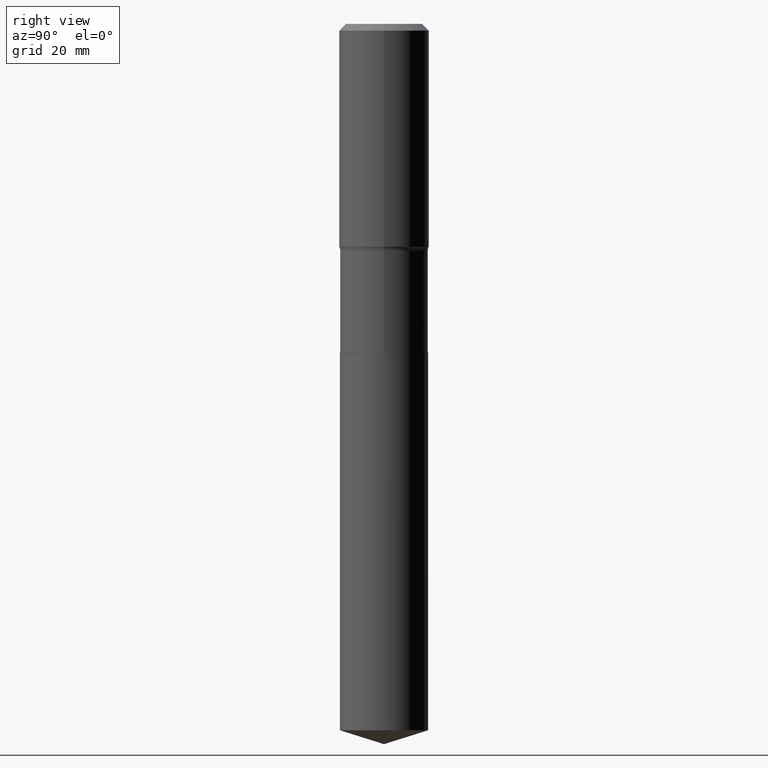
[diagram: clean part render]
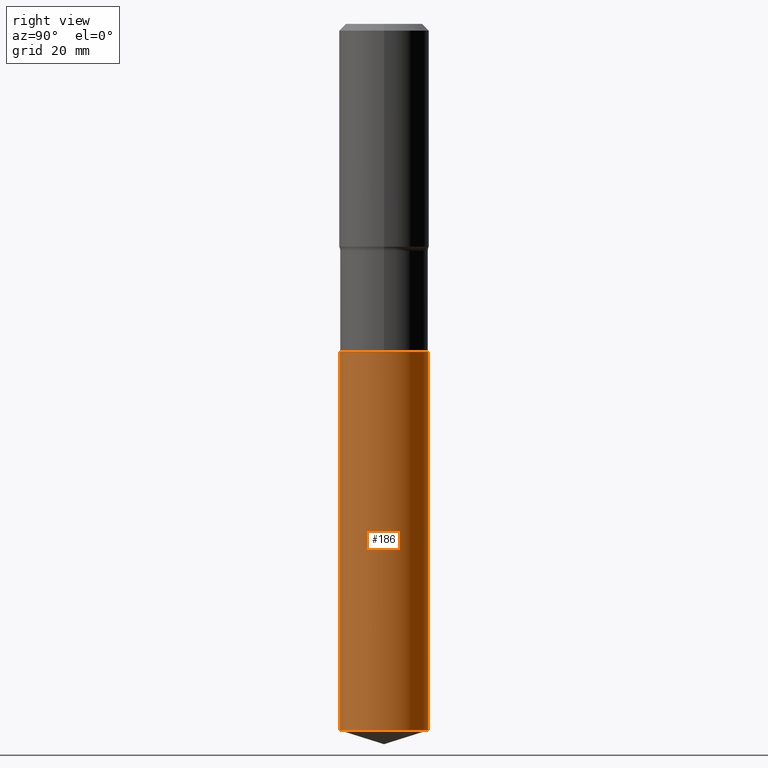
[diagram: same view with one face highlighted and labeled with its STEP entity id]
A machine part, right view. The second image highlights one B-rep face of the part: STEP entity #186.
In plain terms, the highlighted cylindrical surface (partial cylindrical patch) has radius 9.3269 mm, axis along (-0, 0, 1).
Its self-contained STEP definition (entity closure, byte-faithful):
#29 = DIRECTION ( 'NONE',  ( -6.982962677686265922E-15, -1.000000000000000000, 2.975869274144077348E-15 ) ) ;
#34 = DIRECTION ( 'NONE',  ( -2.445466253269083818E-29, 3.491484994764236272E-15, 1.000000000000000000 ) ) ;
#37 = AXIS2_PLACEMENT_3D ( 'NONE', #329, #34, #216 ) ;
#46 = ORIENTED_EDGE ( 'NONE', *, *, #328, .F. ) ;
#62 = VERTEX_POINT ( 'NONE', #464 ) ;
#85 = LINE ( 'NONE', #343, #322 ) ;
#108 = DIRECTION ( 'NONE',  ( -6.982962677686265922E-15, -1.000000000000000000, 2.975869274144077348E-15 ) ) ;
#117 = CARTESIAN_POINT ( 'NONE',  ( -2.564143895246330080E-15, -0.3672000000000096298, -2.734399999999999054 ) ) ;
#129 = CIRCLE ( 'NONE', #37, 0.3672000000000000264 ) ;
#132 = VERTEX_POINT ( 'NONE', #218 ) ;
#154 = CARTESIAN_POINT ( 'NONE',  ( 2.609112925711154729E-15, 0.3671999999999904785, -2.734400000000001274 ) ) ;
#158 = CIRCLE ( 'NONE', #392, 0.3672000000000000264 ) ;
#186 = ADVANCED_FACE ( 'NONE', ( #443 ), #401, .T. ) ;
#188 = LINE ( 'NONE', #154, #286 ) ;
#205 = ORIENTED_EDGE ( 'NONE', *, *, #358, .T. ) ;
#211 = CARTESIAN_POINT ( 'NONE',  ( 6.686889903632637858E-29, -9.547106572932698948E-15, -2.734400000000000386 ) ) ;
#212 = DIRECTION ( 'NONE',  ( -2.445466253269083818E-29, 3.491484994764236272E-15, 1.000000000000000000 ) ) ;
#216 = DIRECTION ( 'NONE',  ( -6.982962677686265922E-15, -1.000000000000000000, 2.975869274144077348E-15 ) ) ;
#218 = CARTESIAN_POINT ( 'NONE',  ( -2.564143895246252377E-15, -0.3672000000000205100, -5.884222284723638730 ) ) ;
#235 = EDGE_CURVE ( 'NONE', #132, #456, #129, .T. ) ;
#261 = ORIENTED_EDGE ( 'NONE', *, *, #235, .T. ) ;
#286 = VECTOR ( 'NONE', #333, 39.37007874015748143 ) ;
#301 = AXIS2_PLACEMENT_3D ( 'NONE', #364, #212, #108 ) ;
#311 = CARTESIAN_POINT ( 'NONE',  ( 2.609112925711232037E-15, 0.3671999999999793762, -5.884222284723640506 ) ) ;
#322 = VECTOR ( 'NONE', #455, 39.37007874015748143 ) ;
#328 = EDGE_CURVE ( 'NONE', #132, #340, #85, .T. ) ;
#329 = CARTESIAN_POINT ( 'NONE',  ( 1.438967400471922140E-28, -2.054466381621928919E-14, -5.884222284723639618 ) ) ;
#333 = DIRECTION ( 'NONE',  ( -2.445466253269083538E-29, 3.491484994764236667E-15, 1.000000000000000000 ) ) ;
#340 = VERTEX_POINT ( 'NONE', #117 ) ;
#343 = CARTESIAN_POINT ( 'NONE',  ( -2.564143895246330080E-15, -0.3672000000000096298, -2.734399999999999054 ) ) ;
#347 = ORIENTED_EDGE ( 'NONE', *, *, #470, .F. ) ;
#358 = EDGE_CURVE ( 'NONE', #456, #62, #188, .T. ) ;
#364 = CARTESIAN_POINT ( 'NONE',  ( 6.686889903632637858E-29, -9.547106572932698948E-15, -2.734400000000000386 ) ) ;
#392 = AXIS2_PLACEMENT_3D ( 'NONE', #211, #482, #29 ) ;
#395 = EDGE_LOOP ( 'NONE', ( #261, #205, #347, #46 ) ) ;
#401 = CYLINDRICAL_SURFACE ( 'NONE', #301, 0.3672000000000000264 ) ;
#443 = FACE_OUTER_BOUND ( 'NONE', #395, .T. ) ;
#455 = DIRECTION ( 'NONE',  ( -2.445466253269083538E-29, 3.491484994764236667E-15, 1.000000000000000000 ) ) ;
#456 = VERTEX_POINT ( 'NONE', #311 ) ;
#464 = CARTESIAN_POINT ( 'NONE',  ( 2.609112925711232826E-15, 0.3671999999999904785, -2.734400000000001274 ) ) ;
#470 = EDGE_CURVE ( 'NONE', #340, #62, #158, .T. ) ;
#482 = DIRECTION ( 'NONE',  ( -2.445466253269083818E-29, 3.491484994764236272E-15, 1.000000000000000000 ) ) ;